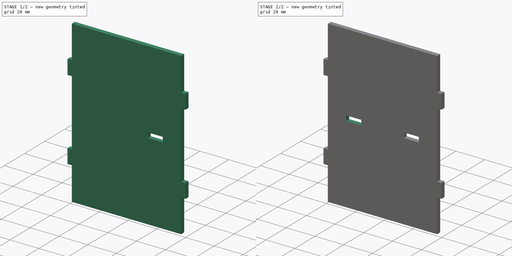
[diagram: build sequence overview — one tinted view per stage of 2, left to right]
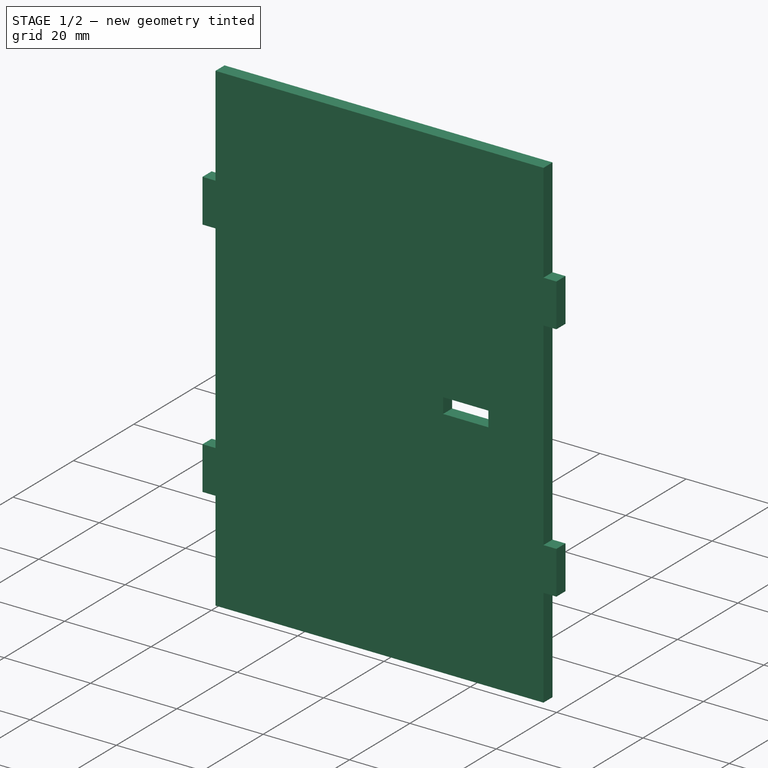
[diagram: stage 1 of 2 — iso view after this stage's code; geometry added in this stage tinted green]
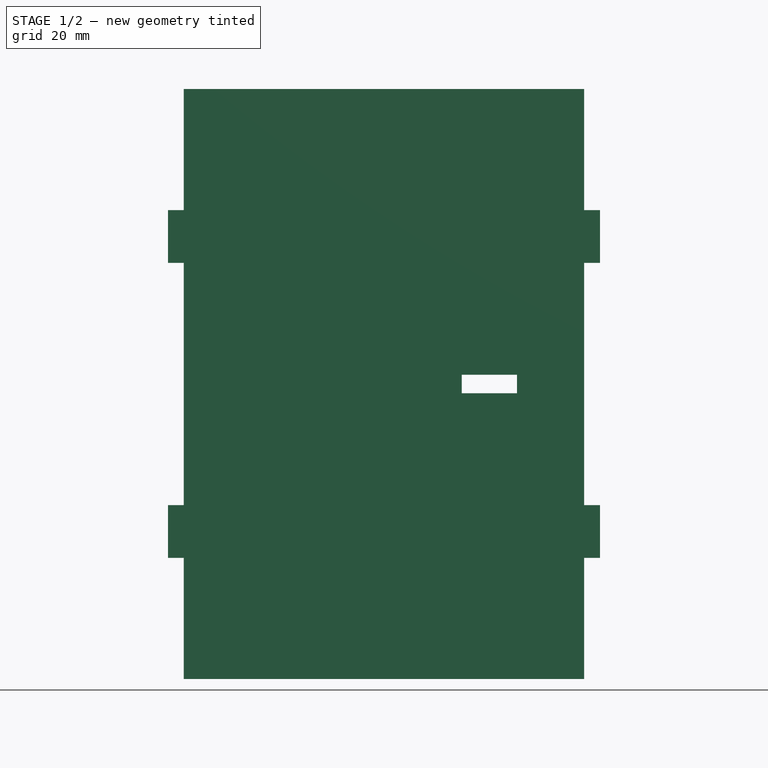
[diagram: stage 1 of 2 — front view after this stage's code; geometry added in this stage tinted green]
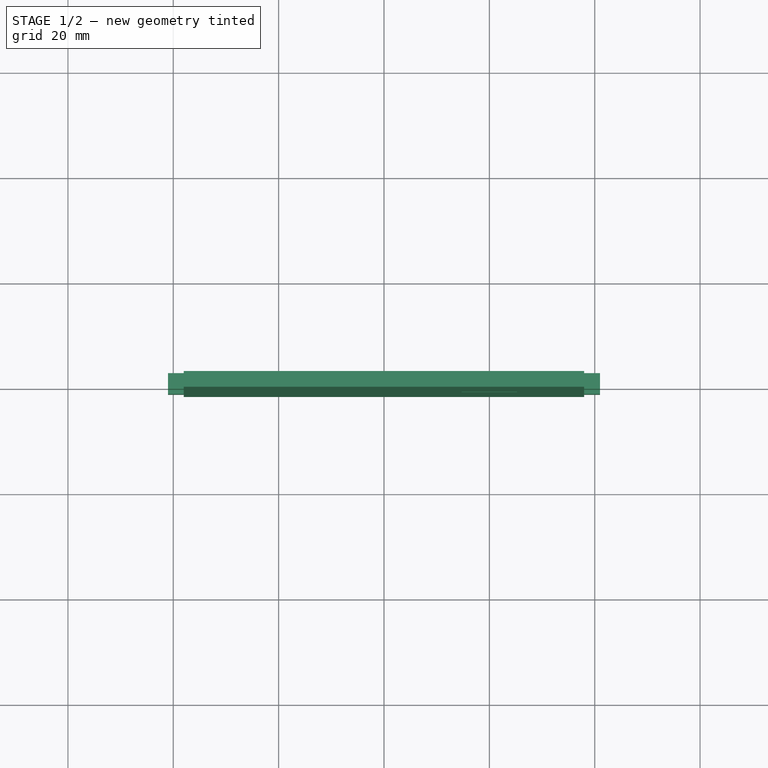
[diagram: stage 1 of 2 — top view after this stage's code; geometry added in this stage tinted green]
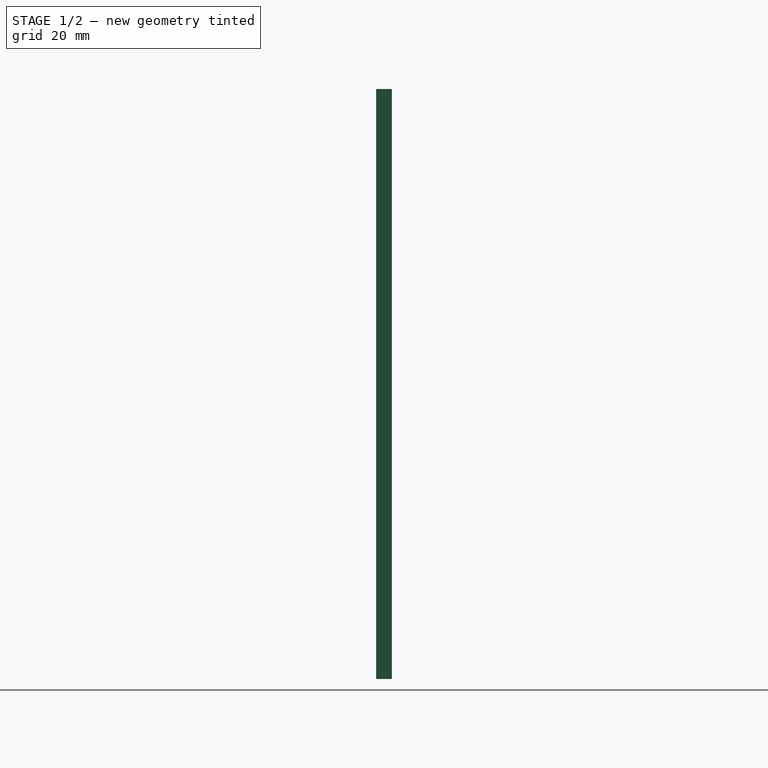
[diagram: stage 1 of 2 — right view after this stage's code; geometry added in this stage tinted green]
FCSTD DOCUMENT  (FreeCAD 0.21R33771 (Git))
Label: SpacerFlange_v2
License: Creative Commons Attribution-ShareAlike 4.0
LicenseURL: https://creativecommons.org/licenses/by-sa/4.0/
objects: Sketcher::SketchObject×4, PartDesign::Point×1, PartDesign::Pad×1, PartDesign::Pocket×1, PartDesign::Mirrored×1, PartDesign::CoordinateSystem×1, PartDesign::Body×1, PartDesign::Line×1, App::Part×1
note: 13 computed .brp shape members not serialized (recipe doc carries the construction recipe); baked Part::Feature solids carry a one-line shape summary decoded from their .brp

FEATURE [Sketcher::SketchObject] Sketch  label="FlangeDims"
  FullyConstrained = false
  MapMode = 5
  Placement = pos=(0,0,0) rot=(1,0,0;1.5708rad)
  Support = -> [XZ_Plane]
  expr: Constraints[1] = 10 in
  expr: Constraints[53] = 16 in
  sketch-geometry (23):
    g0: Circle CenterX=0 CenterY=0 CenterZ=0 NormalX=0 NormalY=0 NormalZ=1 AngleXU=0 Radius=127
    g1: LineSegment StartX=-136.262 StartY=-56.4416 StartZ=0 EndX=-136.262 EndY=56.4416 EndZ=0
    g2: LineSegment StartX=-136.262 StartY=56.4416 StartZ=0 EndX=-139.262 EndY=56.4416 EndZ=0
    g3: LineSegment StartX=-139.262 StartY=56.4416 StartZ=0 EndX=-139.262 EndY=-56.4416 EndZ=0
    g4: LineSegment StartX=-139.262 StartY=-56.4416 StartZ=0 EndX=-136.262 EndY=-56.4416 EndZ=0
    g5: GeomPoint X=-137.762 Y=0 Z=0
    g6: LineSegment StartX=0 StartY=0 StartZ=0 EndX=-136.262 EndY=56.4416 EndZ=0
    g7: LineSegment StartX=-136.262 StartY=56.4416 StartZ=0 EndX=-136.262 EndY=-56.4416 EndZ=0
    g8: LineSegment StartX=-136.262 StartY=-56.4416 StartZ=0 EndX=-56.4416 EndY=-136.262 EndZ=0
    g9: LineSegment StartX=-56.4416 StartY=-136.262 StartZ=0 EndX=56.4416 EndY=-136.262 EndZ=0
    g10: LineSegment StartX=56.4416 StartY=-136.262 StartZ=0 EndX=136.262 EndY=-56.4416 EndZ=0
    g11: LineSegment StartX=136.262 StartY=-56.4416 StartZ=0 EndX=136.262 EndY=56.4416 EndZ=0
    g12: LineSegment StartX=136.262 StartY=56.4416 StartZ=0 EndX=56.4416 EndY=136.262 EndZ=0
    g13: LineSegment StartX=56.4416 StartY=136.262 StartZ=0 EndX=-56.4416 EndY=136.262 EndZ=0
    g14: LineSegment StartX=-56.4416 StartY=136.262 StartZ=0 EndX=-136.262 EndY=56.4416 EndZ=0
    g15: Circle CenterX=0 CenterY=0 CenterZ=0 NormalX=0 NormalY=0 NormalZ=1 AngleXU=0 Radius=147.489
    g16: Circle CenterX=0 CenterY=0 CenterZ=0 NormalX=0 NormalY=0 NormalZ=1 AngleXU=0 Radius=150.265
    g17: LineSegment StartX=-137.762 StartY=0 StartZ=0 EndX=-136.262 EndY=0 EndZ=0
    g18: LineSegment StartX=-131.631 StartY=0 StartZ=0 EndX=-127 EndY=0 EndZ=0
    g19: LineSegment StartX=-131.631 StartY=0 StartZ=0 EndX=-136.262 EndY=0 EndZ=0
    g20: Circle CenterX=0 CenterY=0 CenterZ=0 NormalX=0 NormalY=0 NormalZ=1 AngleXU=0 Radius=203.2
    g21: Circle CenterX=-117.333 CenterY=48.6008 CenterZ=0 NormalX=0 NormalY=0 NormalZ=1 AngleXU=0 Radius=15
    g22: LineSegment StartX=-139.262 StartY=34.4278 StartZ=0 EndX=-122.245 EndY=34.4278 EndZ=0
  constraints (60):
    c: Coincident(g0,g-1)
    c: Diameter(g0) = 254
    c: Coincident(g1,g2)
    c: Coincident(g2,g3)
    c: Coincident(g3,g4)
    c: Coincident(g4,g1)
    c: Horizontal(g2)
    c: Horizontal(g4)
    c: Vertical(g1)
    c: Vertical(g3)
    c: Symmetric(g2,g1,g5)
    c: PointOnObject(g5,g-1)
    c: Coincident(g6,g0)
    c: Coincident(g6,g1)
    c: DistanceX(g2,g2) = 3
    c: Coincident(g7,g8)
    c: Coincident(g8,g9)
    c: Coincident(g9,g10)
    c: Coincident(g10,g11)
    c: Coincident(g11,g12)
    c: Coincident(g12,g13)
    c: Coincident(g13,g14)
    c: Coincident(g14,g7)
    c: Equal(g7, g8-g14) x7
    c: PointOnObject(g7,g15)
    c: PointOnObject(g8,g15)
    c: PointOnObject(g9,g15)
    c: PointOnObject(g10,g15)
    c: PointOnObject(g11,g15)
    c: PointOnObject(g12,g15)
    c: PointOnObject(g13,g15)
    c: PointOnObject(g14,g15)
    c: Coincident(g15,g0)
    c: Coincident(g7,g1)
    c: Vertical(g7)
    c: Coincident(g16,g0)
    c: PointOnObject(g2,g16)
    c: Coincident(g17,g5)
    c: Horizontal(g17)
    c: Distance(g3) = 112.883
    c: Diameter(g15) = 294.978
    c: PointOnObject(g17,g1)
    c: PointOnObject(g18,g0)
    c: Horizontal(g18)
    c: Horizontal(g19)
    c: Diameter(g16) = 300.53
    c: Coincident(g20,g0)
    c: Diameter(g20) = 406.4
    c: PointOnObject(g21,g6)
    c: PointOnObject(g21,g0)
    c: Diameter(g21) = 30
    c: Equal(g19,g18)
    c: Coincident(g19,g17)
    c: Coincident(g19,g18)
    c: PointOnObject(g22,g3)
    c: Horizontal(g22)
    c: PointOnObject(g22,g21)
    c: PointOnObject(g22,g0)
    c: DistanceY(g0,g22) = 34.4278  'Max_Flange_Half'
    c: DistanceY(g0,g1) = 56.4416
FEATURE [PartDesign::Point] DatumPoint
  AttacherType = Attacher::AttachEnginePoint
  MapMode = 37
  Placement = pos=(-122.245,-7.6e-15,34.4278) rot=(0,0,1;0rad)
  Support = -> [Sketch]
FEATURE [Sketcher::SketchObject] Sketch001
  FullyConstrained = true
  MapMode = 5
  Placement = pos=(0,0,0) rot=(1,0,0;1.5708rad)
  Support = -> [XZ_Plane]
  sketch-geometry (25):
    g0: LineSegment StartX=38 StartY=-56 StartZ=0 EndX=38 EndY=56 EndZ=0
    g1: LineSegment StartX=38 StartY=56 StartZ=0 EndX=-38 EndY=56 EndZ=0
    g2: LineSegment StartX=-38 StartY=56 StartZ=0 EndX=-38 EndY=-56 EndZ=0
    g3: LineSegment StartX=-38 StartY=-56 StartZ=0 EndX=38 EndY=-56 EndZ=0
    g4: GeomPoint X=0 Y=0 Z=0
    g5: LineSegment StartX=-38 StartY=-23 StartZ=0 EndX=-41 EndY=-23 EndZ=0
    g6: LineSegment StartX=-41 StartY=-23 StartZ=0 EndX=-41 EndY=-33 EndZ=0
    g7: LineSegment StartX=-41 StartY=-33 StartZ=0 EndX=-38 EndY=-33 EndZ=0
    g8: LineSegment StartX=-38 StartY=23 StartZ=0 EndX=-41 EndY=23 EndZ=0
    g9: LineSegment StartX=-41 StartY=23 StartZ=0 EndX=-41 EndY=33 EndZ=0
    g10: LineSegment StartX=-41 StartY=33 StartZ=0 EndX=-38 EndY=33 EndZ=0
    g11: LineSegment StartX=38 StartY=33 StartZ=0 EndX=41 EndY=33 EndZ=0
    g12: LineSegment StartX=41 StartY=33 StartZ=0 EndX=41 EndY=23 EndZ=0
    g13: LineSegment StartX=41 StartY=23 StartZ=0 EndX=38 EndY=23 EndZ=0
    g14: LineSegment StartX=38 StartY=-23 StartZ=0 EndX=41 EndY=-23 EndZ=0
    g15: LineSegment StartX=41 StartY=-23 StartZ=0 EndX=41 EndY=-33 EndZ=0
    g16: LineSegment StartX=41 StartY=-33 StartZ=0 EndX=38 EndY=-33 EndZ=0
    g17: LineSegment StartX=-38 StartY=23 StartZ=0 EndX=-38 EndY=0 EndZ=0
    g18: LineSegment StartX=-38 StartY=0 StartZ=0 EndX=-38 EndY=-23 EndZ=0
    g19: LineSegment StartX=-38 StartY=-33 StartZ=0 EndX=-38 EndY=-56 EndZ=0
    g20: LineSegment StartX=-38 StartY=33 StartZ=0 EndX=-38 EndY=56 EndZ=0
    g21: LineSegment StartX=38 StartY=56 StartZ=0 EndX=38 EndY=33 EndZ=0
    g22: LineSegment StartX=38 StartY=23 StartZ=0 EndX=38 EndY=0 EndZ=0
    g23: LineSegment StartX=38 StartY=0 StartZ=0 EndX=38 EndY=-23 EndZ=0
    g24: LineSegment StartX=38 StartY=-33 StartZ=0 EndX=38 EndY=-56 EndZ=0
  constraints (71):
    c: Coincident(g0,g1)
    c: Coincident(g1,g2)
    c: Coincident(g2,g3)
    c: Coincident(g3,g0)
    c: Horizontal(g1)
    c: Horizontal(g3)
    c: Vertical(g0)
    c: Vertical(g2)
    c: Symmetric(g1,g0,g4)
    c: Coincident(g4,g-1)
    c: DistanceY(g4,g0) = 56
    c: DistanceX(g4,g0) = 38
    c: PointOnObject(g5,g2)
    c: Horizontal(g5)
    c: Coincident(g6,g5)
    c: Vertical(g6)
    c: Coincident(g7,g6)
    c: PointOnObject(g7,g2)
    c: Horizontal(g7)
    c: PointOnObject(g8,g2)
    c: Coincident(g9,g8)
    c: Vertical(g9)
    c: Coincident(g10,g9)
    c: PointOnObject(g10,g2)
    c: Horizontal(g10)
    c: PointOnObject(g11,g0)
    c: Horizontal(g11)
    c: Coincident(g12,g11)
    c: Vertical(g12)
    c: Coincident(g13,g12)
    c: PointOnObject(g13,g0)
    c: Horizontal(g13)
    c: PointOnObject(g14,g0)
    c: Horizontal(g14)
    c: Vertical(g15)
    c: Coincident(g16,g15)
    c: PointOnObject(g16,g0)
    c: Horizontal(g16)
    c: Horizontal(g8)
    c: DistanceY(g9,g9) = 10
    c: Equal(g9,g12)
    c: Equal(g12,g15)
    c: Equal(g15,g6)
    c: DistanceX(g10,g10) = 3
    c: Equal(g10,g11)
    c: Equal(g11,g14)
    c: Equal(g14,g5)
    c: Coincident(g17,g8)
    c: PointOnObject(g17,g-1)
    c: Coincident(g18,g17)
    c: Coincident(g18,g5)
    c: PointOnObject(g17,g2)
    c: Coincident(g19,g7)
    c: Coincident(g19,g3)
    c: Coincident(g20,g10)
    c: Coincident(g20,g1)
    c: Coincident(g21,g1)
    c: Coincident(g21,g11)
    c: Coincident(g22,g13)
    c: PointOnObject(g22,g-1)
    c: Coincident(g23,g22)
    c: Coincident(g23,g14)
    c: Coincident(g24,g16)
    c: Coincident(g24,g3)
    c: PointOnObject(g22,g0)
    c: Equal(g17,g18)
    c: Equal(g17,g22)
    c: Equal(g22,g23)
    c: Equal(g20,g17)
    c: Coincident(g15,g14)
    c: DistanceY(g22,g12) = 23
FEATURE [PartDesign::Pad] Pad
  Direction = (0,-1,-2e-16)
  Length = 3
  Length2 = 10
  Midplane = true
  Placement = pos=(0,0,0) rot=(1,0,0;1.5708rad)
  Profile = -> Sketch001
  ReferenceAxis = -> Sketch001 [N_Axis]
  Type = 0
FEATURE [Sketcher::SketchObject] Sketch002
  FullyConstrained = true
  MapMode = 5
  Placement = pos=(0,0,0) rot=(1,0,0;1.5708rad)
  Support = -> [XZ_Plane]
  sketch-geometry (6):
    g0: LineSegment StartX=25.25 StartY=-1.75 StartZ=0 EndX=25.25 EndY=1.75 EndZ=0
    g1: LineSegment StartX=25.25 StartY=1.75 StartZ=0 EndX=14.75 EndY=1.75 EndZ=0
    g2: LineSegment StartX=14.75 StartY=1.75 StartZ=0 EndX=14.75 EndY=-1.75 EndZ=0
    g3: LineSegment StartX=14.75 StartY=-1.75 StartZ=0 EndX=25.25 EndY=-1.75 EndZ=0
    g4: GeomPoint X=20 Y=0 Z=0
    g5: LineSegment StartX=38 StartY=10 StartZ=0 EndX=38 EndY=0 EndZ=0
  constraints (18):
    c: Coincident(g0,g1)
    c: Coincident(g1,g2)
    c: Coincident(g2,g3)
    c: Coincident(g3,g0)
    c: Horizontal(g1)
    c: Horizontal(g3)
    c: Vertical(g0)
    c: Vertical(g2)
    c: Symmetric(g1,g0,g4)
    c: DistanceY(g0,g0) = 3.5
    c: PointOnObject(g4,g-1)
    c: DistanceX(g1,g1) = 10.5
    c: DistanceX(g-1,g4) = 20
    c: Vertical(g5)
    c: PointOnObject(g5,g-1)
    c: DistanceX(g-1,g5) = 38
    c: DistanceY(g5,g5) = 10
    c: DistanceX(g0,g5) = 12.75
FEATURE [PartDesign::Pocket] Pocket  label="VerticalGussetSlot"
  BaseFeature = -> Pad
  Direction = (0,1,2e-16)
  Length = 5
  Length2 = 5
  Midplane = true
  Placement = pos=(0,0,0) rot=(1,0,0;1.5708rad)
  Profile = -> Sketch002
  ReferenceAxis = -> Sketch002 [N_Axis]
  Type = 1
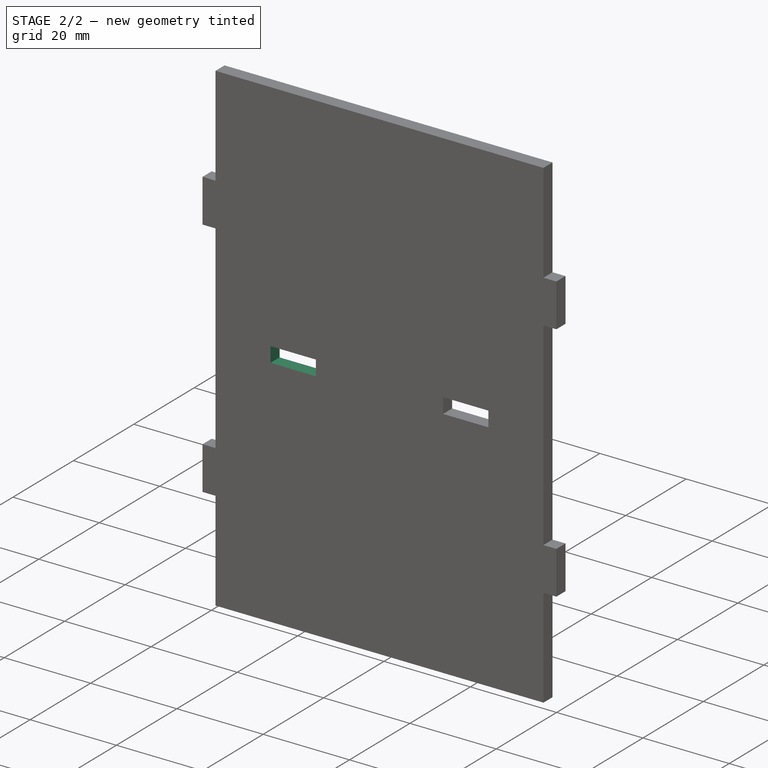
[diagram: stage 2 of 2 — iso view after this stage's code; geometry added in this stage tinted green]
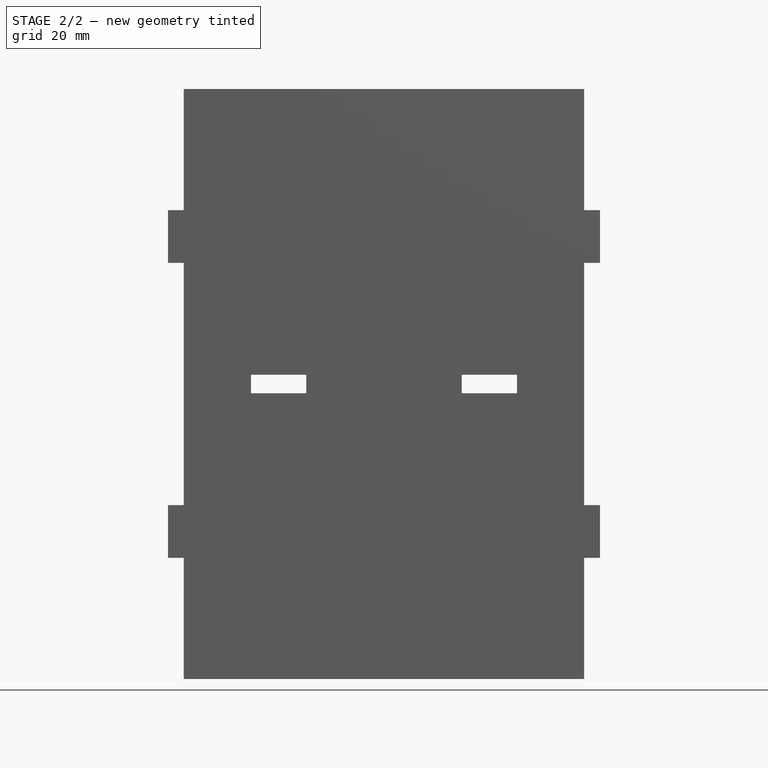
[diagram: stage 2 of 2 — front view after this stage's code; geometry added in this stage tinted green]
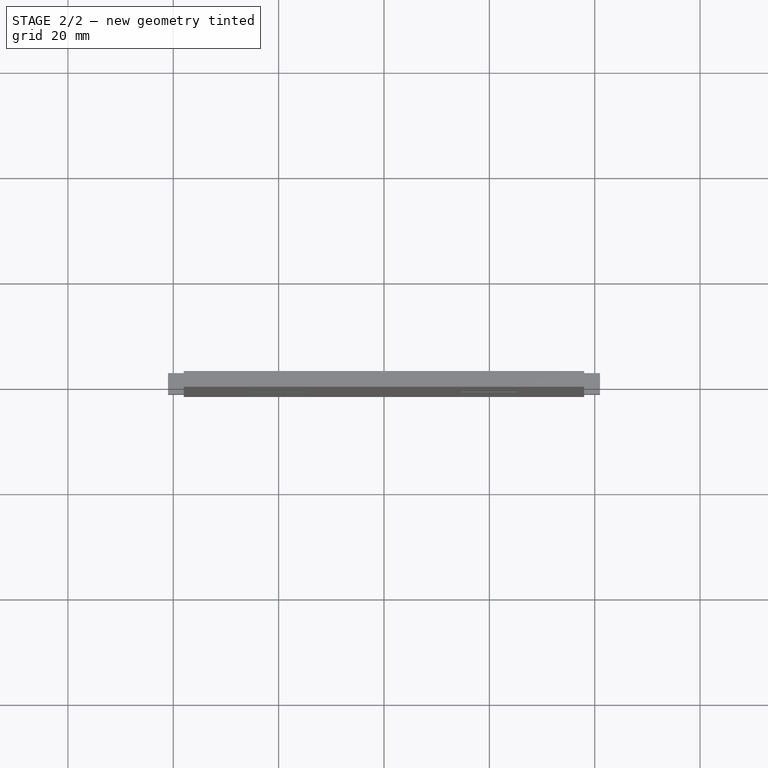
[diagram: stage 2 of 2 — top view after this stage's code; geometry added in this stage tinted green]
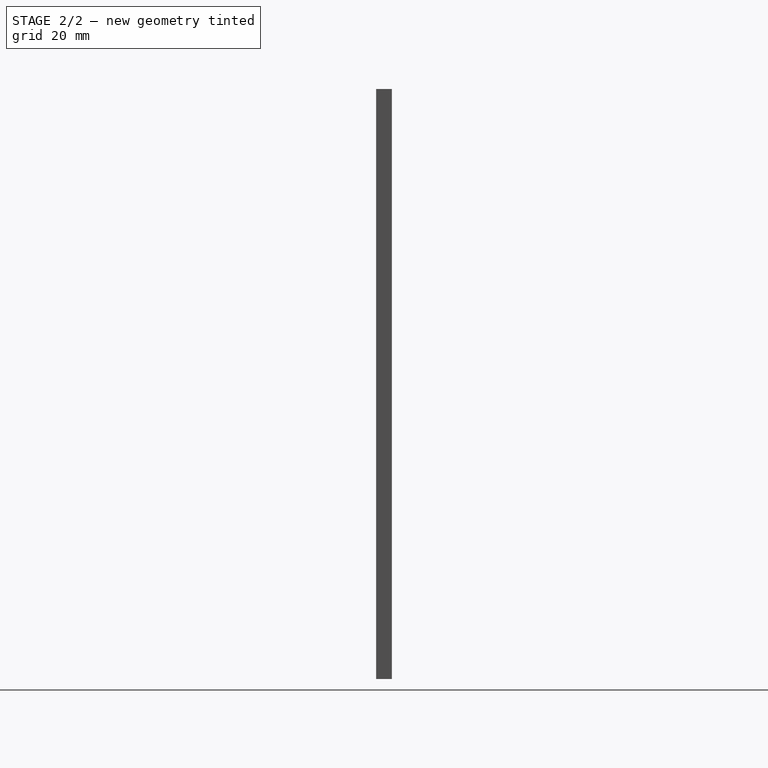
[diagram: stage 2 of 2 — right view after this stage's code; geometry added in this stage tinted green]
FEATURE [PartDesign::Mirrored] Mirrored
  BaseFeature = -> Pocket
  MirrorPlane = -> Sketch002 [V_Axis]
  Originals = -> [Pocket]
  Placement = pos=(0,0,0) rot=(1,0,0;1.5708rad)
FEATURE [PartDesign::CoordinateSystem] LCS_Origin
  AttacherType = Attacher::AttachEngine3D
  MapMode = 2
  Support = -> [X_Axis001]
FEATURE [Sketcher::SketchObject] Sketch_1
  FullyConstrained = true
  MapMode = 5
  Placement = pos=(0,0,0) rot=(0.57735,0.57735,0.57735;2.0944rad)
  Support = -> [YZ_Plane]
  sketch-geometry (2):
    g0: LineSegment StartX=0 StartY=0 StartZ=0 EndX=0 EndY=17 EndZ=0
    g1: GeomPoint X=0 Y=12 Z=0
  constraints (5):
    c: PointOnObject(g1,g0)
    c: Distance(g-1,g1) = 12
    c: Distance(g1,g0) = 5
    c: Coincident(g0,g-1)
    c: PointOnObject(g0,g-2)
FEATURE [PartDesign::Body] Body
  Group = -> [Sketch,DatumPoint,Sketch001,Pad,Sketch002,Pocket,Mirrored,Sketch_1]
  Origin = -> Origin
  Tip = -> Mirrored
FEATURE [PartDesign::Line] TabCenterAxis
  AttacherType = Attacher::AttachEngineLine
  Length = 200
  MapMode = 46
  Placement = pos=(-3.8e-15,3.8e-15,17) rot=(0,1,0;1.5708rad)
  ResizeMode = 1
  Support = -> [Sketch_1,YZ_Plane]
FEATURE [App::Part] TabFlange
  Group = -> [LCS_Origin,Body,TabCenterAxis]
  Origin = -> Origin001
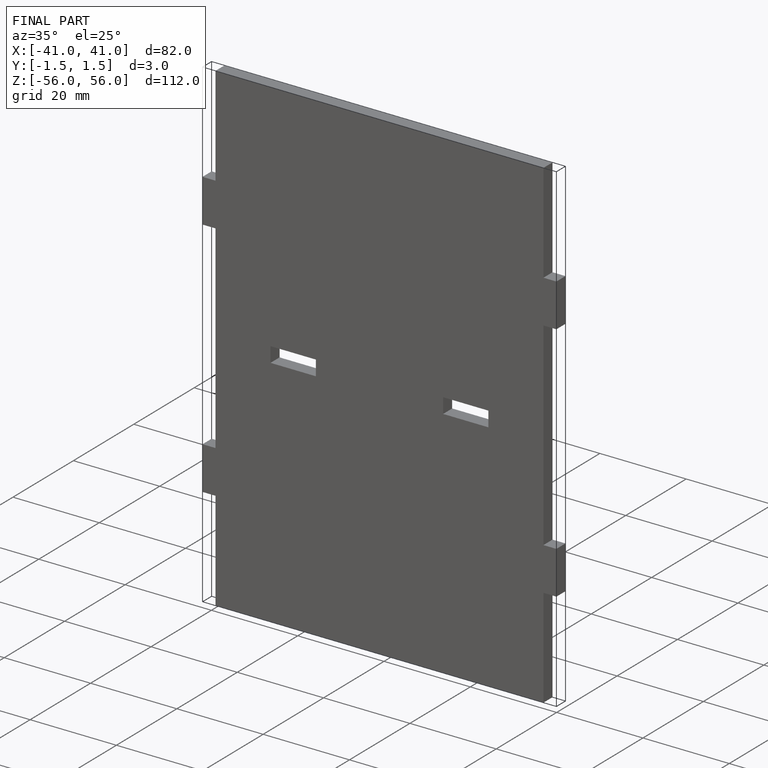
[diagram: finished part — iso view with bounding-box wireframe]
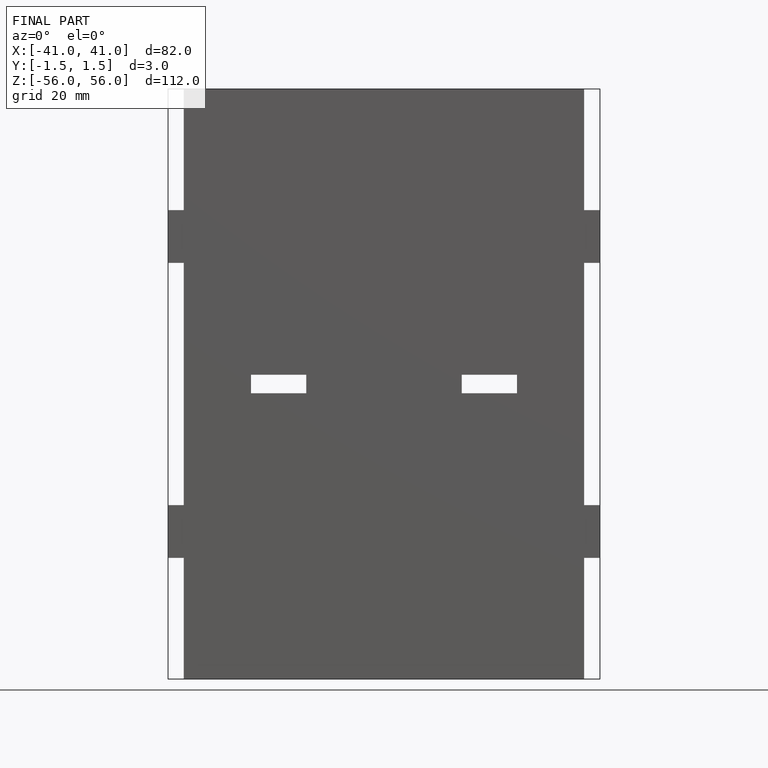
[diagram: finished part — front view with bounding-box wireframe]
